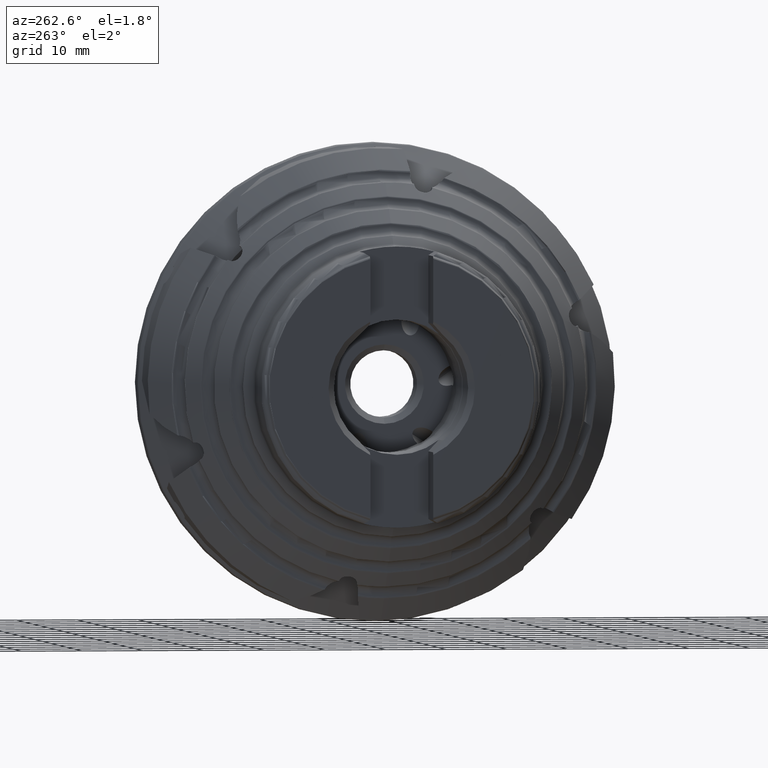
[diagram: clean part render]
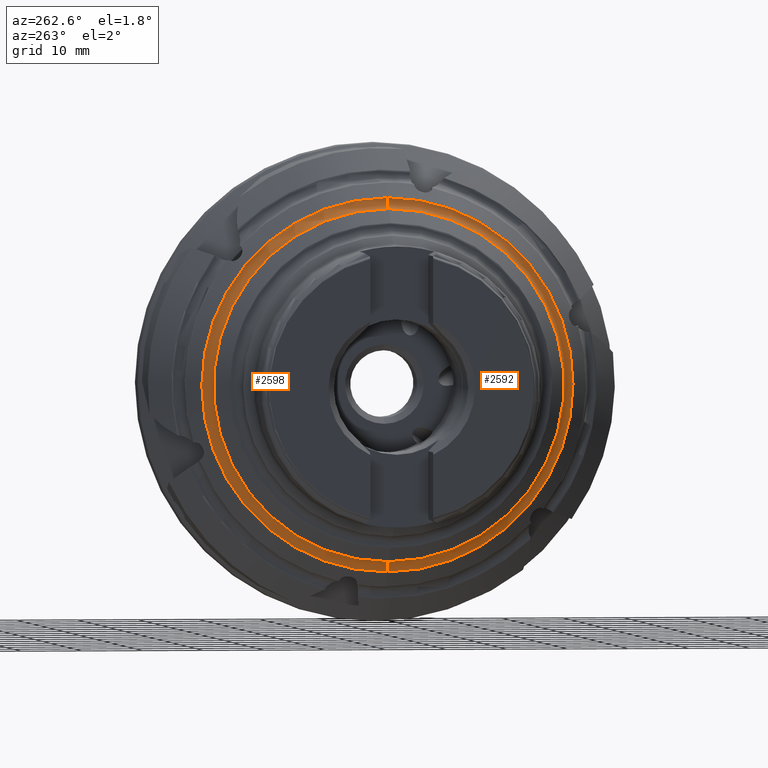
[diagram: same view with one multi-face feature highlighted, each face labeled with its STEP entity id]
A machine part, auxiliary view. The highlighted faces form ONE feature: a constant-radius fillet chain: 2 tangent blend faces with common blend radius 1.5 mm. The faces share edges in the B-rep.
Their STEP definitions:
[1] entity #2592 (Torus):
#1376 = CIRCLE ( 'NONE', #11866, 1.500000000000001300 ) ;
#1382 = CIRCLE ( 'NONE', #11848, 1.500000000000001300 ) ;
#1544 = TOROIDAL_SURFACE ( 'NONE', #5858, 30.35504403266119100, 1.499999999999999100 ) ;
#1552 = FACE_OUTER_BOUND ( 'NONE', #5073, .T. ) ;
#1701 = CARTESIAN_POINT ( 'NONE',  ( -25.42365777867877000, 0.0000000000000000000, -30.59366459914856400 ) ) ;
#1844 = VERTEX_POINT ( 'NONE', #1701 ) ;
#2339 = EDGE_CURVE ( 'NONE', #2806, #2805, #1376, .T. ) ;
#2341 = EDGE_CURVE ( 'NONE', #1844, #2808, #1382, .T. ) ;
#2506 = CARTESIAN_POINT ( 'NONE',  ( -26.90455623071700200, 0.0000000000000000000, -30.35504403266119100 ) ) ;
#2507 = DIRECTION ( 'NONE',  ( -0.0000000000000000000, -1.000000000000000000, -0.0000000000000000000 ) ) ;
#2508 = DIRECTION ( 'NONE',  ( 0.0000000000000000000, 0.0000000000000000000, -1.000000000000000000 ) ) ;
#2592 = ADVANCED_FACE ( 'NONE', ( #1552 ), #1544, .F. ) ;
#2805 = VERTEX_POINT ( 'NONE', #7834 ) ;
#2806 = VERTEX_POINT ( 'NONE', #7844 ) ;
#2808 = VERTEX_POINT ( 'NONE', #7835 ) ;
#3363 = AXIS2_PLACEMENT_3D ( 'NONE', #4712, #4713, #4714 ) ;
#3389 = AXIS2_PLACEMENT_3D ( 'NONE', #10769, #10770, #10771 ) ;
#3883 = CARTESIAN_POINT ( 'NONE',  ( -26.90455623071700200, 3.717420751257549400E-015, 30.35504403266119100 ) ) ;
#3884 = DIRECTION ( 'NONE',  ( 0.0000000000000000000, 1.000000000000000000, -1.224646799147353200E-016 ) ) ;
#3885 = DIRECTION ( 'NONE',  ( 0.0000000000000000000, 1.224646799147349500E-016, 1.000000000000000000 ) ) ;
#4712 = CARTESIAN_POINT ( 'NONE',  ( -26.90455623071700200, 0.0000000000000000000, 0.0000000000000000000 ) ) ;
#4713 = DIRECTION ( 'NONE',  ( 1.000000000000000000, -0.0000000000000000000, -0.0000000000000000000 ) ) ;
#4714 = DIRECTION ( 'NONE',  ( 0.0000000000000000000, 0.0000000000000000000, -1.000000000000000000 ) ) ;
#4941 = ORIENTED_EDGE ( 'NONE', *, *, #8421, .F. ) ;
#4943 = ORIENTED_EDGE ( 'NONE', *, *, #8328, .T. ) ;
#4944 = ORIENTED_EDGE ( 'NONE', *, *, #2341, .F. ) ;
#4946 = ORIENTED_EDGE ( 'NONE', *, *, #2339, .T. ) ;
#5073 = EDGE_LOOP ( 'NONE', ( #4946, #4943, #4944, #4941 ) ) ;
#5423 = CIRCLE ( 'NONE', #3363, 28.85504403266119400 ) ;
#5629 = CIRCLE ( 'NONE', #3389, 30.59366459914856400 ) ;
#5644 = DIRECTION ( 'NONE',  ( 1.000000000000000000, -0.0000000000000000000, -0.0000000000000000000 ) ) ;
#5646 = CARTESIAN_POINT ( 'NONE',  ( -26.90455623071700200, 0.0000000000000000000, 0.0000000000000000000 ) ) ;
#5648 = DIRECTION ( 'NONE',  ( 0.0000000000000000000, 0.0000000000000000000, -1.000000000000000000 ) ) ;
#5858 = AXIS2_PLACEMENT_3D ( 'NONE', #5646, #5644, #5648 ) ;
#7834 = CARTESIAN_POINT ( 'NONE',  ( -26.90455623071700200, 3.533723731385446700E-015, 28.85504403266119400 ) ) ;
#7835 = CARTESIAN_POINT ( 'NONE',  ( -26.90455623071700200, 0.0000000000000000000, -28.85504403266119400 ) ) ;
#7844 = CARTESIAN_POINT ( 'NONE',  ( -25.42365777867877000, 3.762591423357442500E-015, 30.59366459914856400 ) ) ;
#8328 = EDGE_CURVE ( 'NONE', #2805, #2808, #5423, .T. ) ;
#8421 = EDGE_CURVE ( 'NONE', #2806, #1844, #5629, .T. ) ;
#10769 = CARTESIAN_POINT ( 'NONE',  ( -25.42365777867877000, 0.0000000000000000000, 0.0000000000000000000 ) ) ;
#10770 = DIRECTION ( 'NONE',  ( 1.000000000000000000, -0.0000000000000000000, -0.0000000000000000000 ) ) ;
#10771 = DIRECTION ( 'NONE',  ( 0.0000000000000000000, 0.0000000000000000000, -1.000000000000000000 ) ) ;
#11848 = AXIS2_PLACEMENT_3D ( 'NONE', #2506, #2507, #2508 ) ;
#11866 = AXIS2_PLACEMENT_3D ( 'NONE', #3883, #3884, #3885 ) ;
[2] entity #2598 (Torus):
#679 = ORIENTED_EDGE ( 'NONE', *, *, #2316, .T. ) ;
#687 = ORIENTED_EDGE ( 'NONE', *, *, #2341, .T. ) ;
#691 = ORIENTED_EDGE ( 'NONE', *, *, #2351, .F. ) ;
#693 = ORIENTED_EDGE ( 'NONE', *, *, #2339, .F. ) ;
#1110 = CARTESIAN_POINT ( 'NONE',  ( -26.90455623071700200, 0.0000000000000000000, 0.0000000000000000000 ) ) ;
#1111 = DIRECTION ( 'NONE',  ( 1.000000000000000000, -0.0000000000000000000, -0.0000000000000000000 ) ) ;
#1112 = DIRECTION ( 'NONE',  ( 0.0000000000000000000, 0.0000000000000000000, -1.000000000000000000 ) ) ;
#1135 = TOROIDAL_SURFACE ( 'NONE', #5886, 30.35504403266119100, 1.499999999999999100 ) ;
#1137 = FACE_OUTER_BOUND ( 'NONE', #4989, .T. ) ;
#1376 = CIRCLE ( 'NONE', #11866, 1.500000000000001300 ) ;
#1382 = CIRCLE ( 'NONE', #11848, 1.500000000000001300 ) ;
#1388 = CIRCLE ( 'NONE', #11873, 30.59366459914856400 ) ;
#1437 = CIRCLE ( 'NONE', #11854, 28.85504403266119400 ) ;
#1701 = CARTESIAN_POINT ( 'NONE',  ( -25.42365777867877000, 0.0000000000000000000, -30.59366459914856400 ) ) ;
#1844 = VERTEX_POINT ( 'NONE', #1701 ) ;
#2316 = EDGE_CURVE ( 'NONE', #2808, #2805, #1437, .T. ) ;
#2339 = EDGE_CURVE ( 'NONE', #2806, #2805, #1376, .T. ) ;
#2341 = EDGE_CURVE ( 'NONE', #1844, #2808, #1382, .T. ) ;
#2351 = EDGE_CURVE ( 'NONE', #1844, #2806, #1388, .T. ) ;
#2506 = CARTESIAN_POINT ( 'NONE',  ( -26.90455623071700200, 0.0000000000000000000, -30.35504403266119100 ) ) ;
#2507 = DIRECTION ( 'NONE',  ( -0.0000000000000000000, -1.000000000000000000, -0.0000000000000000000 ) ) ;
#2508 = DIRECTION ( 'NONE',  ( 0.0000000000000000000, 0.0000000000000000000, -1.000000000000000000 ) ) ;
#2598 = ADVANCED_FACE ( 'NONE', ( #1137 ), #1135, .F. ) ;
#2805 = VERTEX_POINT ( 'NONE', #7834 ) ;
#2806 = VERTEX_POINT ( 'NONE', #7844 ) ;
#2808 = VERTEX_POINT ( 'NONE', #7835 ) ;
#3883 = CARTESIAN_POINT ( 'NONE',  ( -26.90455623071700200, 3.717420751257549400E-015, 30.35504403266119100 ) ) ;
#3884 = DIRECTION ( 'NONE',  ( 0.0000000000000000000, 1.000000000000000000, -1.224646799147353200E-016 ) ) ;
#3885 = DIRECTION ( 'NONE',  ( 0.0000000000000000000, 1.224646799147349500E-016, 1.000000000000000000 ) ) ;
#4989 = EDGE_LOOP ( 'NONE', ( #687, #679, #693, #691 ) ) ;
#5676 = DIRECTION ( 'NONE',  ( 1.000000000000000000, -0.0000000000000000000, -0.0000000000000000000 ) ) ;
#5678 = CARTESIAN_POINT ( 'NONE',  ( -26.90455623071700200, 0.0000000000000000000, 0.0000000000000000000 ) ) ;
#5680 = DIRECTION ( 'NONE',  ( 0.0000000000000000000, 0.0000000000000000000, -1.000000000000000000 ) ) ;
#5886 = AXIS2_PLACEMENT_3D ( 'NONE', #5678, #5676, #5680 ) ;
#7834 = CARTESIAN_POINT ( 'NONE',  ( -26.90455623071700200, 3.533723731385446700E-015, 28.85504403266119400 ) ) ;
#7835 = CARTESIAN_POINT ( 'NONE',  ( -26.90455623071700200, 0.0000000000000000000, -28.85504403266119400 ) ) ;
#7844 = CARTESIAN_POINT ( 'NONE',  ( -25.42365777867877000, 3.762591423357442500E-015, 30.59366459914856400 ) ) ;
#9709 = CARTESIAN_POINT ( 'NONE',  ( -25.42365777867877000, 0.0000000000000000000, 0.0000000000000000000 ) ) ;
#9710 = DIRECTION ( 'NONE',  ( 1.000000000000000000, -0.0000000000000000000, -0.0000000000000000000 ) ) ;
#9711 = DIRECTION ( 'NONE',  ( 0.0000000000000000000, 0.0000000000000000000, -1.000000000000000000 ) ) ;
#11848 = AXIS2_PLACEMENT_3D ( 'NONE', #2506, #2507, #2508 ) ;
#11854 = AXIS2_PLACEMENT_3D ( 'NONE', #1110, #1111, #1112 ) ;
#11866 = AXIS2_PLACEMENT_3D ( 'NONE', #3883, #3884, #3885 ) ;
#11873 = AXIS2_PLACEMENT_3D ( 'NONE', #9709, #9710, #9711 ) ;